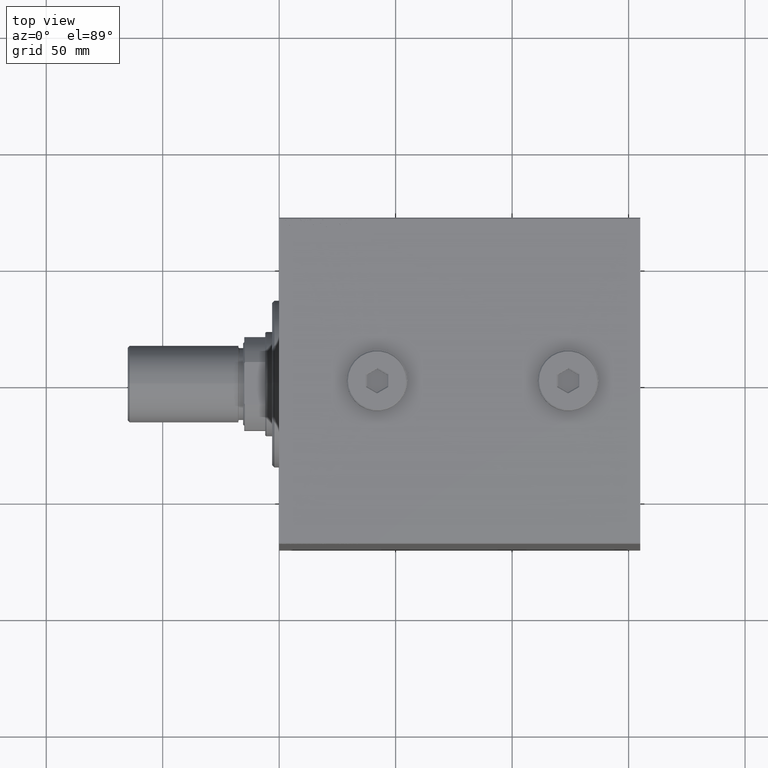
[diagram: clean part render]
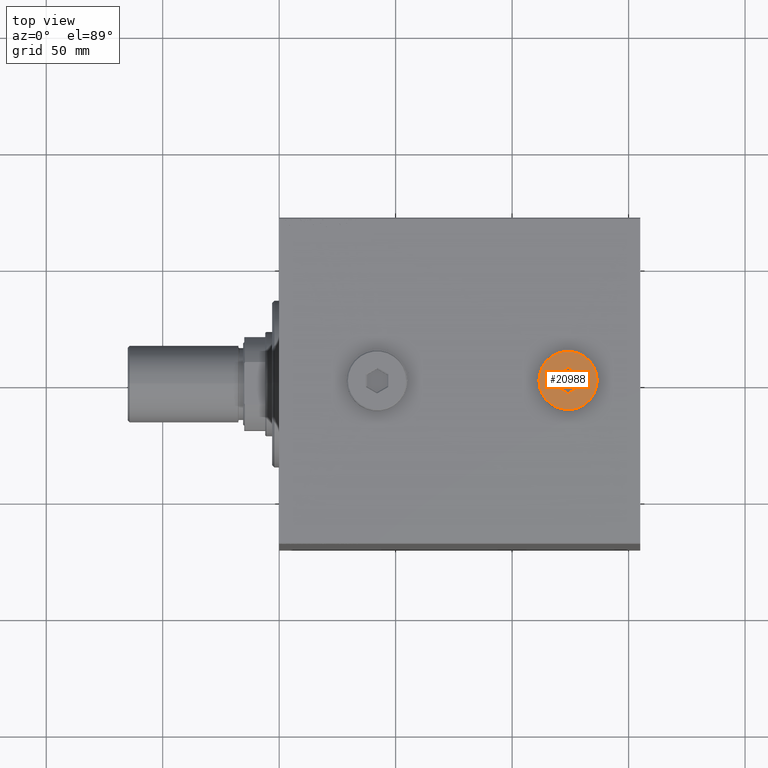
[diagram: same view with one face highlighted and labeled with its STEP entity id]
A machine part, top view. The second image highlights one B-rep face of the part: STEP entity #20988.
In plain terms, the highlighted planar face has unit normal (0, 0, 1).
Its self-contained STEP definition (entity closure, byte-faithful):
#677 = DIRECTION ( 'NONE',  ( 0.000000000000000000, 0.000000000000000000, 1.000000000000000000 ) ) ;
#1360 = CARTESIAN_POINT ( 'NONE',  ( -4.583333333333337478, -2.934863868380603424, 5.000000000000000000 ) ) ;
#1647 = VECTOR ( 'NONE', #41075, 1000.000000000000000 ) ;
#3503 = CARTESIAN_POINT ( 'NONE',  ( 4.583333333333339255, 2.934863868380602092, 5.000000000000000000 ) ) ;
#3905 = AXIS2_PLACEMENT_3D ( 'NONE', #25627, #15323, #39863 ) ;
#4537 = EDGE_LOOP ( 'NONE', ( #23715, #22698, #7860, #39705, #17762, #19997 ) ) ;
#5920 = LINE ( 'NONE', #12931, #27486 ) ;
#7283 = CARTESIAN_POINT ( 'NONE',  ( 4.833333333333341919, -2.790526301083194216, 5.000000000000000000 ) ) ;
#7860 = ORIENTED_EDGE ( 'NONE', *, *, #30532, .T. ) ;
#8229 = LINE ( 'NONE', #42806, #35659 ) ;
#8982 = VERTEX_POINT ( 'NONE', #11270 ) ;
#10634 = CARTESIAN_POINT ( 'NONE',  ( 1.144664513637780713E-15, 5.581052602166389320, 5.000000000000000000 ) ) ;
#11270 = CARTESIAN_POINT ( 'NONE',  ( 12.50000000000001066, 1.561424668912876097E-15, 5.000000000000000000 ) ) ;
#11384 = CIRCLE ( 'NONE', #44949, 12.50000000000001066 ) ;
#11403 = DIRECTION ( 'NONE',  ( 1.000000000000000000, 0.000000000000000000, 0.000000000000000000 ) ) ;
#11689 = ORIENTED_EDGE ( 'NONE', *, *, #46146, .T. ) ;
#12830 = CARTESIAN_POINT ( 'NONE',  ( 4.833333333333341919, 2.790526301083194216, 5.000000000000000000 ) ) ;
#12931 = CARTESIAN_POINT ( 'NONE',  ( -4.833333333333340143, 2.501851166488380240, 5.000000000000000000 ) ) ;
#13011 = DIRECTION ( 'NONE',  ( -0.8660254037844385966, 0.5000000000000001110, 0.000000000000000000 ) ) ;
#13306 = CIRCLE ( 'NONE', #45383, 12.50000000000001066 ) ;
#14856 = PLANE ( 'NONE',  #3905 ) ;
#15024 = CARTESIAN_POINT ( 'NONE',  ( -4.833333333333340143, -2.790526301083195104, 5.000000000000000000 ) ) ;
#15098 = VECTOR ( 'NONE', #38865, 1000.000000000000114 ) ;
#15323 = DIRECTION ( 'NONE',  ( 0.000000000000000000, 0.000000000000000000, 1.000000000000000000 ) ) ;
#15373 = CARTESIAN_POINT ( 'NONE',  ( 4.833333333333341919, -2.501851166488378908, 5.000000000000000000 ) ) ;
#15690 = VERTEX_POINT ( 'NONE', #7283 ) ;
#17762 = ORIENTED_EDGE ( 'NONE', *, *, #31168, .T. ) ;
#18374 = FACE_BOUND ( 'NONE', #4537, .T. ) ;
#18424 = CARTESIAN_POINT ( 'NONE',  ( 0.000000000000000000, 0.000000000000000000, 5.000000000000000000 ) ) ;
#18436 = VERTEX_POINT ( 'NONE', #29076 ) ;
#19997 = ORIENTED_EDGE ( 'NONE', *, *, #24174, .T. ) ;
#20988 = ADVANCED_FACE ( 'NONE', ( #18374, #32598 ), #14856, .T. ) ;
#21921 = VERTEX_POINT ( 'NONE', #45792 ) ;
#22495 = DIRECTION ( 'NONE',  ( -0.8660254037844387076, -0.4999999999999998335, 0.000000000000000000 ) ) ;
#22698 = ORIENTED_EDGE ( 'NONE', *, *, #25904, .T. ) ;
#23715 = ORIENTED_EDGE ( 'NONE', *, *, #27544, .T. ) ;
#24174 = EDGE_CURVE ( 'NONE', #18436, #26039, #26364, .T. ) ;
#24633 = CARTESIAN_POINT ( 'NONE',  ( -0.2500000000000021094, 5.436715034868981000, 5.000000000000000000 ) ) ;
#24775 = DIRECTION ( 'NONE',  ( 0.8660254037844387076, -0.4999999999999998890, 0.000000000000000000 ) ) ;
#25627 = CARTESIAN_POINT ( 'NONE',  ( 0.000000000000000000, 0.000000000000000000, 5.000000000000000000 ) ) ;
#25904 = EDGE_CURVE ( 'NONE', #34093, #37130, #41688, .T. ) ;
#25961 = VECTOR ( 'NONE', #24775, 1000.000000000000000 ) ;
#26039 = VERTEX_POINT ( 'NONE', #15024 ) ;
#26364 = LINE ( 'NONE', #1360, #43403 ) ;
#26831 = LINE ( 'NONE', #15373, #1647 ) ;
#27486 = VECTOR ( 'NONE', #44706, 1000.000000000000000 ) ;
#27544 = EDGE_CURVE ( 'NONE', #26039, #34093, #5920, .T. ) ;
#27759 = DIRECTION ( 'NONE',  ( 0.000000000000000000, 0.000000000000000000, 1.000000000000000000 ) ) ;
#27875 = EDGE_CURVE ( 'NONE', #8982, #21921, #13306, .T. ) ;
#29076 = CARTESIAN_POINT ( 'NONE',  ( -1.883403334290581714E-15, -5.581052602166390209, 5.000000000000000000 ) ) ;
#29195 = LINE ( 'NONE', #3503, #25961 ) ;
#29636 = VERTEX_POINT ( 'NONE', #12830 ) ;
#30532 = EDGE_CURVE ( 'NONE', #37130, #29636, #29195, .T. ) ;
#31168 = EDGE_CURVE ( 'NONE', #15690, #18436, #8229, .T. ) ;
#32598 = FACE_OUTER_BOUND ( 'NONE', #36126, .T. ) ;
#34093 = VERTEX_POINT ( 'NONE', #40821 ) ;
#34982 = DIRECTION ( 'NONE',  ( 1.000000000000000000, 0.000000000000000000, 0.000000000000000000 ) ) ;
#35659 = VECTOR ( 'NONE', #22495, 1000.000000000000000 ) ;
#36126 = EDGE_LOOP ( 'NONE', ( #11689, #36235 ) ) ;
#36235 = ORIENTED_EDGE ( 'NONE', *, *, #27875, .T. ) ;
#37130 = VERTEX_POINT ( 'NONE', #10634 ) ;
#38865 = DIRECTION ( 'NONE',  ( 0.8660254037844388186, 0.4999999999999997780, 0.000000000000000000 ) ) ;
#39705 = ORIENTED_EDGE ( 'NONE', *, *, #43510, .T. ) ;
#39863 = DIRECTION ( 'NONE',  ( 1.000000000000000000, 0.000000000000000000, -0.000000000000000000 ) ) ;
#40821 = CARTESIAN_POINT ( 'NONE',  ( -4.833333333333340143, 2.790526301083195104, 5.000000000000000000 ) ) ;
#41075 = DIRECTION ( 'NONE',  ( 0.000000000000000000, -1.000000000000000000, 0.000000000000000000 ) ) ;
#41688 = LINE ( 'NONE', #24633, #15098 ) ;
#41770 = CARTESIAN_POINT ( 'NONE',  ( 0.000000000000000000, 0.000000000000000000, 5.000000000000000000 ) ) ;
#42806 = CARTESIAN_POINT ( 'NONE',  ( 0.2500000000000015543, -5.436715034868981888, 5.000000000000000000 ) ) ;
#43403 = VECTOR ( 'NONE', #13011, 1000.000000000000114 ) ;
#43510 = EDGE_CURVE ( 'NONE', #29636, #15690, #26831, .T. ) ;
#44706 = DIRECTION ( 'NONE',  ( 0.000000000000000000, 1.000000000000000000, 0.000000000000000000 ) ) ;
#44949 = AXIS2_PLACEMENT_3D ( 'NONE', #18424, #677, #11403 ) ;
#45383 = AXIS2_PLACEMENT_3D ( 'NONE', #41770, #27759, #34982 ) ;
#45792 = CARTESIAN_POINT ( 'NONE',  ( -12.50000000000001066, 0.000000000000000000, 5.000000000000000000 ) ) ;
#46146 = EDGE_CURVE ( 'NONE', #21921, #8982, #11384, .T. ) ;